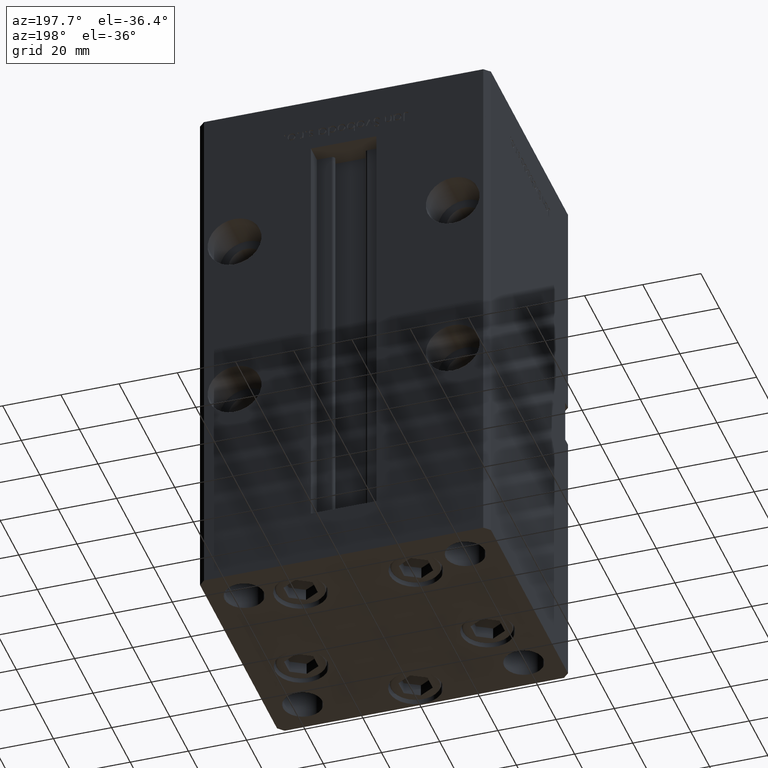
[diagram: clean part render]
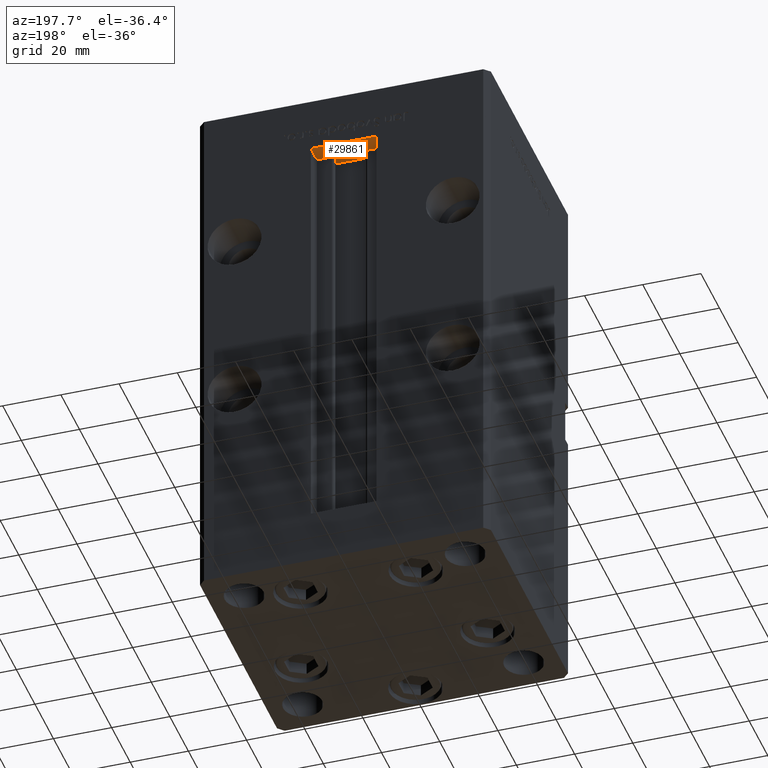
[diagram: same view with one face highlighted and labeled with its STEP entity id]
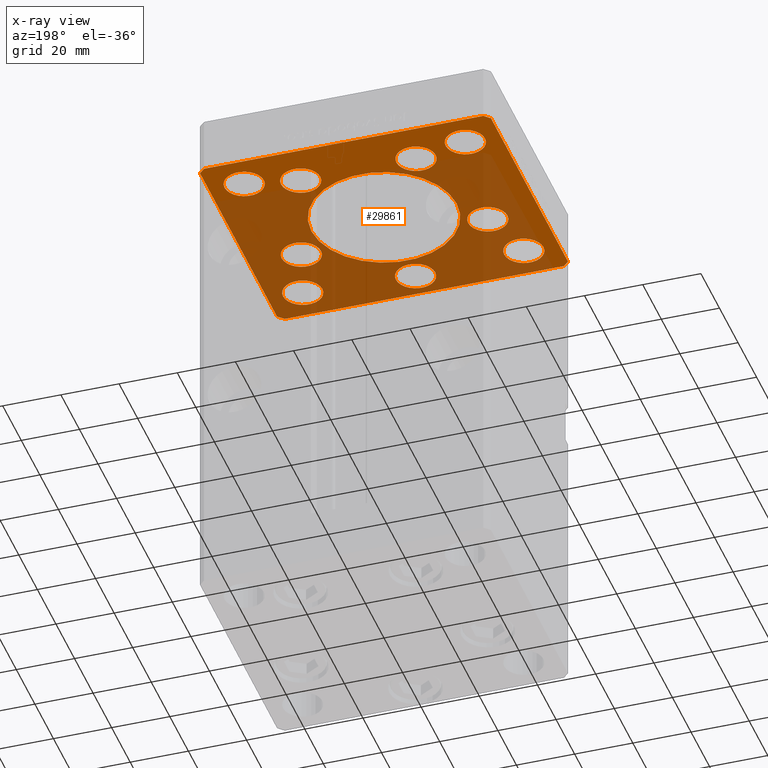
[diagram: x-ray of the same camera — body ghosted, the highlighted face saturated]
A machine part, auxiliary view. The second image highlights one B-rep face of the part: STEP entity #29861.
The next image is the same camera in x-ray: the body ghosted, the highlighted face saturated — about 67% of this face is hidden behind the body in this view.
In plain terms, the highlighted planar face has unit normal (0, 0, 1).
Its self-contained STEP definition (entity closure, byte-faithful):
#101 = DIRECTION ( 'NONE',  ( -0.7071067811865536790, -0.7071067811865414665, 0.000000000000000000 ) ) ;
#145 = CARTESIAN_POINT ( 'NONE',  ( 48.00000000000000711, -43.49999999999992184, -19.00000000000000000 ) ) ;
#228 = CIRCLE ( 'NONE', #15652, 6.749999999999999112 ) ;
#338 = VERTEX_POINT ( 'NONE', #45636 ) ;
#624 = EDGE_CURVE ( 'NONE', #7672, #24189, #51435, .T. ) ;
#974 = CARTESIAN_POINT ( 'NONE',  ( -25.30550741379015989, -11.33333333333332860, -19.00000000000000000 ) ) ;
#1339 = DIRECTION ( 'NONE',  ( 1.000000000000000000, 0.000000000000000000, 0.000000000000000000 ) ) ;
#1450 = CARTESIAN_POINT ( 'NONE',  ( 31.25000000000000000, 31.50000000000000000, -19.00000000000000000 ) ) ;
#1654 = CARTESIAN_POINT ( 'NONE',  ( -38.00000000000000000, 31.50000000000000000, -19.00000000000000000 ) ) ;
#1983 = EDGE_CURVE ( 'NONE', #9144, #33465, #4309, .T. ) ;
#2360 = CARTESIAN_POINT ( 'NONE',  ( -48.00000000000000711, -43.50000000000002842, -19.00000000000000000 ) ) ;
#2396 = EDGE_CURVE ( 'NONE', #21862, #28720, #30601, .T. ) ;
#2771 = EDGE_CURVE ( 'NONE', #50857, #338, #22243, .T. ) ;
#3128 = ORIENTED_EDGE ( 'NONE', *, *, #24017, .F. ) ;
#3172 = AXIS2_PLACEMENT_3D ( 'NONE', #36399, #52786, #12492 ) ;
#4288 = EDGE_LOOP ( 'NONE', ( #26706, #17705 ) ) ;
#4309 = CIRCLE ( 'NONE', #39494, 6.749999999999999112 ) ;
#4528 = ORIENTED_EDGE ( 'NONE', *, *, #41077, .F. ) ;
#4714 = DIRECTION ( 'NONE',  ( 0.7071067811865474617, 0.7071067811865474617, 0.000000000000000000 ) ) ;
#4940 = CIRCLE ( 'NONE', #22944, 6.749999999999999112 ) ;
#5361 = CARTESIAN_POINT ( 'NONE',  ( -38.00000000000000711, -31.50000000000000711, -19.00000000000000000 ) ) ;
#5873 = VERTEX_POINT ( 'NONE', #974 ) ;
#5951 = DIRECTION ( 'NONE',  ( 0.000000000000000000, -0.000000000000000000, -1.000000000000000000 ) ) ;
#6007 = VECTOR ( 'NONE', #29717, 1000.000000000000000 ) ;
#6013 = DIRECTION ( 'NONE',  ( 0.000000000000000000, 0.000000000000000000, 1.000000000000000000 ) ) ;
#6438 = FACE_BOUND ( 'NONE', #8416, .T. ) ;
#6690 = EDGE_CURVE ( 'NONE', #13462, #12822, #46217, .T. ) ;
#6813 = AXIS2_PLACEMENT_3D ( 'NONE', #13841, #6013, #34534 ) ;
#7147 = VERTEX_POINT ( 'NONE', #13233 ) ;
#7190 = ORIENTED_EDGE ( 'NONE', *, *, #39183, .F. ) ;
#7225 = DIRECTION ( 'NONE',  ( 0.000000000000000000, -0.000000000000000000, -1.000000000000000000 ) ) ;
#7508 = DIRECTION ( 'NONE',  ( -1.000000000000000000, 0.000000000000000000, 0.000000000000000000 ) ) ;
#7672 = VERTEX_POINT ( 'NONE', #1450 ) ;
#7795 = ORIENTED_EDGE ( 'NONE', *, *, #10918, .F. ) ;
#8041 = EDGE_CURVE ( 'NONE', #11805, #34625, #17784, .T. ) ;
#8047 = LINE ( 'NONE', #16937, #47334 ) ;
#8416 = EDGE_LOOP ( 'NONE', ( #7190, #31066 ) ) ;
#8821 = AXIS2_PLACEMENT_3D ( 'NONE', #49789, #29391, #8949 ) ;
#8949 = DIRECTION ( 'NONE',  ( 1.000000000000000000, 0.000000000000000000, 0.000000000000000000 ) ) ;
#9144 = VERTEX_POINT ( 'NONE', #22831 ) ;
#9251 = CIRCLE ( 'NONE', #41011, 6.749999999999999112 ) ;
#9373 = CIRCLE ( 'NONE', #16198, 6.749999999999999112 ) ;
#9524 = EDGE_CURVE ( 'NONE', #12822, #13462, #4940, .T. ) ;
#9654 = LINE ( 'NONE', #42446, #42882 ) ;
#9746 = DIRECTION ( 'NONE',  ( 1.000000000000000000, 0.000000000000000000, 0.000000000000000000 ) ) ;
#10282 = ORIENTED_EDGE ( 'NONE', *, *, #17042, .F. ) ;
#10487 = FACE_BOUND ( 'NONE', #50347, .T. ) ;
#10806 = CARTESIAN_POINT ( 'NONE',  ( -44.75000000000000711, -31.50000000000000711, -19.00000000000000000 ) ) ;
#10857 = CARTESIAN_POINT ( 'NONE',  ( -50.00000000000000000, -41.50000000000004263, -19.00000000000000000 ) ) ;
#10918 = EDGE_CURVE ( 'NONE', #33465, #9144, #9251, .T. ) ;
#11221 = ORIENTED_EDGE ( 'NONE', *, *, #49552, .F. ) ;
#11555 = CARTESIAN_POINT ( 'NONE',  ( 32.05550741379015989, -11.33333333333332860, -19.00000000000000000 ) ) ;
#11805 = VERTEX_POINT ( 'NONE', #20316 ) ;
#12111 = EDGE_CURVE ( 'NONE', #14300, #23778, #32500, .T. ) ;
#12473 = ORIENTED_EDGE ( 'NONE', *, *, #13516, .T. ) ;
#12492 = DIRECTION ( 'NONE',  ( -1.000000000000000000, 0.000000000000000000, 0.000000000000000000 ) ) ;
#12548 = DIRECTION ( 'NONE',  ( 0.000000000000000000, -0.000000000000000000, -1.000000000000000000 ) ) ;
#12822 = VERTEX_POINT ( 'NONE', #14910 ) ;
#13233 = CARTESIAN_POINT ( 'NONE',  ( -25.00000000000000000, 3.061616997868383043E-15, -19.00000000000000000 ) ) ;
#13268 = VERTEX_POINT ( 'NONE', #10806 ) ;
#13462 = VERTEX_POINT ( 'NONE', #15777 ) ;
#13493 = CIRCLE ( 'NONE', #3172, 6.749999999999999112 ) ;
#13516 = EDGE_CURVE ( 'NONE', #44447, #13268, #9373, .T. ) ;
#13576 = EDGE_CURVE ( 'NONE', #39048, #7147, #23062, .T. ) ;
#13750 = DIRECTION ( 'NONE',  ( 1.000000000000000000, 0.000000000000000000, 0.000000000000000000 ) ) ;
#13841 = CARTESIAN_POINT ( 'NONE',  ( 38.00000000000000000, 31.50000000000000000, -19.00000000000000000 ) ) ;
#14008 = DIRECTION ( 'NONE',  ( 0.000000000000000000, -0.000000000000000000, -1.000000000000000000 ) ) ;
#14077 = EDGE_CURVE ( 'NONE', #51070, #21862, #20529, .T. ) ;
#14300 = VERTEX_POINT ( 'NONE', #45741 ) ;
#14563 = CARTESIAN_POINT ( 'NONE',  ( -19.82068048781374969, 27.62499999999998934, -19.00000000000000000 ) ) ;
#14701 = ORIENTED_EDGE ( 'NONE', *, *, #14077, .F. ) ;
#14722 = VECTOR ( 'NONE', #20609, 1000.000000000000000 ) ;
#14785 = FACE_BOUND ( 'NONE', #22375, .T. ) ;
#14910 = CARTESIAN_POINT ( 'NONE',  ( 26.57068048781374969, 27.62499999999998934, -19.00000000000000000 ) ) ;
#15125 = CARTESIAN_POINT ( 'NONE',  ( 44.75000000000000000, 31.50000000000000000, -19.00000000000000000 ) ) ;
#15282 = AXIS2_PLACEMENT_3D ( 'NONE', #37820, #17401, #33794 ) ;
#15507 = CARTESIAN_POINT ( 'NONE',  ( -38.00000000000000711, -31.50000000000000711, -19.00000000000000000 ) ) ;
#15652 = AXIS2_PLACEMENT_3D ( 'NONE', #30887, #51042, #26336 ) ;
#15777 = CARTESIAN_POINT ( 'NONE',  ( 13.07068048781375147, 27.62499999999998934, -19.00000000000000000 ) ) ;
#15829 = ORIENTED_EDGE ( 'NONE', *, *, #50592, .T. ) ;
#15846 = CARTESIAN_POINT ( 'NONE',  ( -19.82068048781374969, 27.62499999999998934, -19.00000000000000000 ) ) ;
#15850 = ORIENTED_EDGE ( 'NONE', *, *, #6690, .F. ) ;
#16136 = DIRECTION ( 'NONE',  ( -0.000000000000000000, -0.000000000000000000, -1.000000000000000000 ) ) ;
#16198 = AXIS2_PLACEMENT_3D ( 'NONE', #15507, #27870, #36450 ) ;
#16509 = LINE ( 'NONE', #52226, #19254 ) ;
#16937 = CARTESIAN_POINT ( 'NONE',  ( 50.00000000000000000, 41.50000000000000711, -19.00000000000000000 ) ) ;
#16946 = CARTESIAN_POINT ( 'NONE',  ( -38.00000000000000000, 31.50000000000000000, -19.00000000000000000 ) ) ;
#17042 = EDGE_CURVE ( 'NONE', #32568, #48662, #20840, .T. ) ;
#17045 = AXIS2_PLACEMENT_3D ( 'NONE', #14563, #5951, #9746 ) ;
#17091 = DIRECTION ( 'NONE',  ( 1.000000000000000000, 0.000000000000000000, 0.000000000000000000 ) ) ;
#17401 = DIRECTION ( 'NONE',  ( 0.000000000000000000, -0.000000000000000000, -1.000000000000000000 ) ) ;
#17705 = ORIENTED_EDGE ( 'NONE', *, *, #36747, .F. ) ;
#17746 = CARTESIAN_POINT ( 'NONE',  ( -31.25000000000000711, -31.50000000000000711, -19.00000000000000000 ) ) ;
#17784 = CIRCLE ( 'NONE', #41067, 6.749999999999999112 ) ;
#17885 = CARTESIAN_POINT ( 'NONE',  ( 50.00000000000000000, -41.49999999999992895, -19.00000000000000000 ) ) ;
#18214 = CARTESIAN_POINT ( 'NONE',  ( 19.82068048781374969, 27.62499999999998934, -19.00000000000000000 ) ) ;
#18309 = DIRECTION ( 'NONE',  ( -0.000000000000000000, 0.000000000000000000, 1.000000000000000000 ) ) ;
#18794 = EDGE_CURVE ( 'NONE', #45402, #5873, #30174, .T. ) ;
#19254 = VECTOR ( 'NONE', #52767, 1000.000000000000000 ) ;
#19658 = ORIENTED_EDGE ( 'NONE', *, *, #38277, .F. ) ;
#19710 = EDGE_CURVE ( 'NONE', #43713, #36900, #49869, .T. ) ;
#19887 = DIRECTION ( 'NONE',  ( -0.7071067811865512365, 0.7071067811865439090, 0.000000000000000000 ) ) ;
#20316 = CARTESIAN_POINT ( 'NONE',  ( -31.25000000000000000, 31.50000000000000000, -19.00000000000000000 ) ) ;
#20529 = LINE ( 'NONE', #25638, #41993 ) ;
#20609 = DIRECTION ( 'NONE',  ( 0.7071067811865487940, -0.7071067811865463515, 0.000000000000000000 ) ) ;
#20840 = LINE ( 'NONE', #38037, #6007 ) ;
#21692 = CARTESIAN_POINT ( 'NONE',  ( -32.05550741379015989, -11.33333333333332860, -19.00000000000000000 ) ) ;
#21862 = VERTEX_POINT ( 'NONE', #38998 ) ;
#21863 = EDGE_LOOP ( 'NONE', ( #7795, #52132 ) ) ;
#22062 = FACE_BOUND ( 'NONE', #40610, .T. ) ;
#22243 = CIRCLE ( 'NONE', #42007, 6.749999999999999112 ) ;
#22333 = CARTESIAN_POINT ( 'NONE',  ( 0.000000000000000000, -34.00000000000000000, -19.00000000000000000 ) ) ;
#22375 = EDGE_LOOP ( 'NONE', ( #43659, #11221 ) ) ;
#22597 = FACE_BOUND ( 'NONE', #26433, .T. ) ;
#22831 = CARTESIAN_POINT ( 'NONE',  ( -6.749999999999999112, -34.00000000000000000, -19.00000000000000000 ) ) ;
#22944 = AXIS2_PLACEMENT_3D ( 'NONE', #18214, #47483, #50451 ) ;
#23045 = EDGE_CURVE ( 'NONE', #34625, #11805, #23409, .T. ) ;
#23062 = CIRCLE ( 'NONE', #29102, 25.00000000000000000 ) ;
#23114 = PLANE ( 'NONE',  #28619 ) ;
#23155 = EDGE_CURVE ( 'NONE', #24189, #7672, #228, .T. ) ;
#23409 = CIRCLE ( 'NONE', #36243, 6.749999999999999112 ) ;
#23778 = VERTEX_POINT ( 'NONE', #47671 ) ;
#24017 = EDGE_CURVE ( 'NONE', #28720, #43737, #52844, .T. ) ;
#24189 = VERTEX_POINT ( 'NONE', #15125 ) ;
#24271 = CARTESIAN_POINT ( 'NONE',  ( 47.99999999999999289, 43.50000000000000000, -19.00000000000000000 ) ) ;
#25638 = CARTESIAN_POINT ( 'NONE',  ( -48.00000000000000000, 43.49999999999997158, -19.00000000000000000 ) ) ;
#26318 = CARTESIAN_POINT ( 'NONE',  ( 25.00000000000000000, 0.000000000000000000, -19.00000000000000000 ) ) ;
#26336 = DIRECTION ( 'NONE',  ( 1.000000000000000000, 0.000000000000000000, 0.000000000000000000 ) ) ;
#26433 = EDGE_LOOP ( 'NONE', ( #45512, #30726 ) ) ;
#26543 = ORIENTED_EDGE ( 'NONE', *, *, #51519, .F. ) ;
#26562 = DIRECTION ( 'NONE',  ( 1.000000000000000000, 1.156482317317871331E-15, 0.000000000000000000 ) ) ;
#26706 = ORIENTED_EDGE ( 'NONE', *, *, #19710, .F. ) ;
#26708 = AXIS2_PLACEMENT_3D ( 'NONE', #27966, #44340, #7508 ) ;
#26801 = AXIS2_PLACEMENT_3D ( 'NONE', #5361, #38167, #1339 ) ;
#26889 = FACE_BOUND ( 'NONE', #35753, .T. ) ;
#27263 = ORIENTED_EDGE ( 'NONE', *, *, #8041, .F. ) ;
#27870 = DIRECTION ( 'NONE',  ( 0.000000000000000000, 0.000000000000000000, 1.000000000000000000 ) ) ;
#27966 = CARTESIAN_POINT ( 'NONE',  ( 38.00000000000000711, -31.50000000000000711, -19.00000000000000000 ) ) ;
#28435 = AXIS2_PLACEMENT_3D ( 'NONE', #50040, #34183, #13750 ) ;
#28619 = AXIS2_PLACEMENT_3D ( 'NONE', #51583, #18309, #43531 ) ;
#28675 = DIRECTION ( 'NONE',  ( 8.360113137237620037E-17, -1.000000000000000000, 0.000000000000000000 ) ) ;
#28720 = VERTEX_POINT ( 'NONE', #10857 ) ;
#29102 = AXIS2_PLACEMENT_3D ( 'NONE', #36180, #53094, #52574 ) ;
#29222 = CARTESIAN_POINT ( 'NONE',  ( -50.00000000000000000, -41.50000000000004263, -19.00000000000000000 ) ) ;
#29391 = DIRECTION ( 'NONE',  ( 0.000000000000000000, -0.000000000000000000, -1.000000000000000000 ) ) ;
#29552 = ORIENTED_EDGE ( 'NONE', *, *, #624, .T. ) ;
#29717 = DIRECTION ( 'NONE',  ( 0.000000000000000000, 1.000000000000000000, 0.000000000000000000 ) ) ;
#29753 = ORIENTED_EDGE ( 'NONE', *, *, #23045, .F. ) ;
#29861 = ADVANCED_FACE ( 'NONE', ( #30666, #6438, #46524, #14785, #10487, #22597, #26889, #31186, #39503, #22062, #38724 ), #23114, .F. ) ;
#29903 = ORIENTED_EDGE ( 'NONE', *, *, #23155, .T. ) ;
#30174 = CIRCLE ( 'NONE', #28435, 6.749999999999999112 ) ;
#30601 = LINE ( 'NONE', #35916, #50541 ) ;
#30666 = FACE_BOUND ( 'NONE', #34095, .T. ) ;
#30715 = ORIENTED_EDGE ( 'NONE', *, *, #9524, .F. ) ;
#30726 = ORIENTED_EDGE ( 'NONE', *, *, #48402, .F. ) ;
#30886 = CIRCLE ( 'NONE', #48892, 6.749999999999999112 ) ;
#30887 = CARTESIAN_POINT ( 'NONE',  ( 38.00000000000000000, 31.50000000000000000, -19.00000000000000000 ) ) ;
#31066 = ORIENTED_EDGE ( 'NONE', *, *, #18794, .F. ) ;
#31186 = FACE_BOUND ( 'NONE', #50598, .T. ) ;
#32064 = CARTESIAN_POINT ( 'NONE',  ( 31.25000000000000711, -31.50000000000000711, -19.00000000000000000 ) ) ;
#32103 = EDGE_CURVE ( 'NONE', #47480, #51070, #16509, .T. ) ;
#32499 = ORIENTED_EDGE ( 'NONE', *, *, #13576, .F. ) ;
#32500 = CIRCLE ( 'NONE', #17045, 6.749999999999999112 ) ;
#32568 = VERTEX_POINT ( 'NONE', #17885 ) ;
#32637 = VECTOR ( 'NONE', #4714, 1000.000000000000114 ) ;
#33465 = VERTEX_POINT ( 'NONE', #37789 ) ;
#33560 = ORIENTED_EDGE ( 'NONE', *, *, #32103, .F. ) ;
#33794 = DIRECTION ( 'NONE',  ( 1.000000000000000000, 0.000000000000000000, 0.000000000000000000 ) ) ;
#33978 = CARTESIAN_POINT ( 'NONE',  ( -44.75000000000000000, 31.50000000000000000, -19.00000000000000000 ) ) ;
#34095 = EDGE_LOOP ( 'NONE', ( #32499, #26543 ) ) ;
#34183 = DIRECTION ( 'NONE',  ( 0.000000000000000000, -0.000000000000000000, -1.000000000000000000 ) ) ;
#34479 = VERTEX_POINT ( 'NONE', #40960 ) ;
#34524 = CARTESIAN_POINT ( 'NONE',  ( -48.00000000000000000, 43.49999999999997158, -19.00000000000000000 ) ) ;
#34534 = DIRECTION ( 'NONE',  ( 1.000000000000000000, 0.000000000000000000, 0.000000000000000000 ) ) ;
#34625 = VERTEX_POINT ( 'NONE', #33978 ) ;
#35753 = EDGE_LOOP ( 'NONE', ( #29903, #29552 ) ) ;
#35916 = CARTESIAN_POINT ( 'NONE',  ( -50.00000000000000711, 41.49999999999999289, -19.00000000000000000 ) ) ;
#35991 = DIRECTION ( 'NONE',  ( 0.000000000000000000, -0.000000000000000000, -1.000000000000000000 ) ) ;
#36180 = CARTESIAN_POINT ( 'NONE',  ( 0.000000000000000000, 0.000000000000000000, -19.00000000000000000 ) ) ;
#36243 = AXIS2_PLACEMENT_3D ( 'NONE', #16946, #16136, #37634 ) ;
#36399 = CARTESIAN_POINT ( 'NONE',  ( 38.00000000000000711, -31.50000000000000711, -19.00000000000000000 ) ) ;
#36450 = DIRECTION ( 'NONE',  ( 1.000000000000000000, 0.000000000000000000, 0.000000000000000000 ) ) ;
#36747 = EDGE_CURVE ( 'NONE', #36900, #43713, #13493, .T. ) ;
#36900 = VERTEX_POINT ( 'NONE', #32064 ) ;
#37634 = DIRECTION ( 'NONE',  ( -1.000000000000000000, 0.000000000000000000, 0.000000000000000000 ) ) ;
#37663 = DIRECTION ( 'NONE',  ( 1.000000000000000000, 0.000000000000000000, 0.000000000000000000 ) ) ;
#37789 = CARTESIAN_POINT ( 'NONE',  ( 6.749999999999999112, -34.00000000000000000, -19.00000000000000000 ) ) ;
#37820 = CARTESIAN_POINT ( 'NONE',  ( 19.82068048781374969, 27.62499999999998934, -19.00000000000000000 ) ) ;
#37855 = ORIENTED_EDGE ( 'NONE', *, *, #43537, .F. ) ;
#37916 = CIRCLE ( 'NONE', #40444, 6.749999999999999112 ) ;
#38037 = CARTESIAN_POINT ( 'NONE',  ( 50.00000000000000000, -41.49999999999992895, -19.00000000000000000 ) ) ;
#38085 = DIRECTION ( 'NONE',  ( 0.000000000000000000, -0.000000000000000000, -1.000000000000000000 ) ) ;
#38167 = DIRECTION ( 'NONE',  ( 0.000000000000000000, 0.000000000000000000, 1.000000000000000000 ) ) ;
#38277 = EDGE_CURVE ( 'NONE', #43737, #34479, #9654, .T. ) ;
#38724 = FACE_BOUND ( 'NONE', #4288, .T. ) ;
#38998 = CARTESIAN_POINT ( 'NONE',  ( -50.00000000000000711, 41.49999999999999289, -19.00000000000000000 ) ) ;
#39048 = VERTEX_POINT ( 'NONE', #26318 ) ;
#39183 = EDGE_CURVE ( 'NONE', #5873, #45402, #30886, .T. ) ;
#39243 = DIRECTION ( 'NONE',  ( 1.000000000000000000, 0.000000000000000000, 0.000000000000000000 ) ) ;
#39494 = AXIS2_PLACEMENT_3D ( 'NONE', #22333, #14008, #37663 ) ;
#39503 = FACE_OUTER_BOUND ( 'NONE', #39851, .T. ) ;
#39851 = EDGE_LOOP ( 'NONE', ( #3128, #45792, #14701, #33560, #37855, #10282, #4528, #19658 ) ) ;
#40406 = CIRCLE ( 'NONE', #45601, 6.749999999999999112 ) ;
#40444 = AXIS2_PLACEMENT_3D ( 'NONE', #49361, #12548, #45328 ) ;
#40610 = EDGE_LOOP ( 'NONE', ( #27263, #29753 ) ) ;
#40960 = CARTESIAN_POINT ( 'NONE',  ( 48.00000000000000711, -43.49999999999992184, -19.00000000000000000 ) ) ;
#41011 = AXIS2_PLACEMENT_3D ( 'NONE', #45040, #41559, #17091 ) ;
#41067 = AXIS2_PLACEMENT_3D ( 'NONE', #1654, #51097, #43304 ) ;
#41077 = EDGE_CURVE ( 'NONE', #34479, #32568, #41553, .T. ) ;
#41395 = CIRCLE ( 'NONE', #26801, 6.749999999999999112 ) ;
#41553 = LINE ( 'NONE', #145, #32637 ) ;
#41559 = DIRECTION ( 'NONE',  ( 0.000000000000000000, -0.000000000000000000, -1.000000000000000000 ) ) ;
#41993 = VECTOR ( 'NONE', #101, 1000.000000000000000 ) ;
#42007 = AXIS2_PLACEMENT_3D ( 'NONE', #11555, #35991, #39243 ) ;
#42132 = CARTESIAN_POINT ( 'NONE',  ( 38.80550741379015989, -11.33333333333332860, -19.00000000000000000 ) ) ;
#42446 = CARTESIAN_POINT ( 'NONE',  ( -48.00000000000000711, -43.50000000000002842, -19.00000000000000000 ) ) ;
#42882 = VECTOR ( 'NONE', #26562, 1000.000000000000000 ) ;
#43304 = DIRECTION ( 'NONE',  ( -1.000000000000000000, 0.000000000000000000, 0.000000000000000000 ) ) ;
#43531 = DIRECTION ( 'NONE',  ( 1.000000000000000000, 0.000000000000000000, 0.000000000000000000 ) ) ;
#43537 = EDGE_CURVE ( 'NONE', #48662, #47480, #8047, .T. ) ;
#43659 = ORIENTED_EDGE ( 'NONE', *, *, #2771, .F. ) ;
#43713 = VERTEX_POINT ( 'NONE', #51538 ) ;
#43737 = VERTEX_POINT ( 'NONE', #2360 ) ;
#44340 = DIRECTION ( 'NONE',  ( -0.000000000000000000, -0.000000000000000000, -1.000000000000000000 ) ) ;
#44447 = VERTEX_POINT ( 'NONE', #17746 ) ;
#45040 = CARTESIAN_POINT ( 'NONE',  ( 0.000000000000000000, -34.00000000000000000, -19.00000000000000000 ) ) ;
#45078 = DIRECTION ( 'NONE',  ( 1.000000000000000000, 0.000000000000000000, 0.000000000000000000 ) ) ;
#45328 = DIRECTION ( 'NONE',  ( 1.000000000000000000, 0.000000000000000000, 0.000000000000000000 ) ) ;
#45402 = VERTEX_POINT ( 'NONE', #50682 ) ;
#45512 = ORIENTED_EDGE ( 'NONE', *, *, #12111, .F. ) ;
#45601 = AXIS2_PLACEMENT_3D ( 'NONE', #15846, #7225, #48610 ) ;
#45636 = CARTESIAN_POINT ( 'NONE',  ( 25.30550741379015989, -11.33333333333332860, -19.00000000000000000 ) ) ;
#45741 = CARTESIAN_POINT ( 'NONE',  ( -13.07068048781375325, 27.62499999999998934, -19.00000000000000000 ) ) ;
#45792 = ORIENTED_EDGE ( 'NONE', *, *, #2396, .F. ) ;
#46217 = CIRCLE ( 'NONE', #15282, 6.749999999999999112 ) ;
#46524 = FACE_BOUND ( 'NONE', #21863, .T. ) ;
#47334 = VECTOR ( 'NONE', #19887, 999.9999999999998863 ) ;
#47480 = VERTEX_POINT ( 'NONE', #24271 ) ;
#47483 = DIRECTION ( 'NONE',  ( 0.000000000000000000, -0.000000000000000000, -1.000000000000000000 ) ) ;
#47502 = CARTESIAN_POINT ( 'NONE',  ( 50.00000000000000000, 41.50000000000000711, -19.00000000000000000 ) ) ;
#47671 = CARTESIAN_POINT ( 'NONE',  ( -26.57068048781375325, 27.62499999999998934, -19.00000000000000000 ) ) ;
#48273 = CIRCLE ( 'NONE', #8821, 25.00000000000000000 ) ;
#48402 = EDGE_CURVE ( 'NONE', #23778, #14300, #40406, .T. ) ;
#48610 = DIRECTION ( 'NONE',  ( 1.000000000000000000, 0.000000000000000000, 0.000000000000000000 ) ) ;
#48662 = VERTEX_POINT ( 'NONE', #47502 ) ;
#48892 = AXIS2_PLACEMENT_3D ( 'NONE', #21692, #38085, #45078 ) ;
#49361 = CARTESIAN_POINT ( 'NONE',  ( 32.05550741379015989, -11.33333333333332860, -19.00000000000000000 ) ) ;
#49552 = EDGE_CURVE ( 'NONE', #338, #50857, #37916, .T. ) ;
#49789 = CARTESIAN_POINT ( 'NONE',  ( 0.000000000000000000, 0.000000000000000000, -19.00000000000000000 ) ) ;
#49869 = CIRCLE ( 'NONE', #26708, 6.749999999999999112 ) ;
#50040 = CARTESIAN_POINT ( 'NONE',  ( -32.05550741379015989, -11.33333333333332860, -19.00000000000000000 ) ) ;
#50347 = EDGE_LOOP ( 'NONE', ( #30715, #15850 ) ) ;
#50451 = DIRECTION ( 'NONE',  ( 1.000000000000000000, 0.000000000000000000, 0.000000000000000000 ) ) ;
#50541 = VECTOR ( 'NONE', #28675, 1000.000000000000000 ) ;
#50592 = EDGE_CURVE ( 'NONE', #13268, #44447, #41395, .T. ) ;
#50598 = EDGE_LOOP ( 'NONE', ( #12473, #15829 ) ) ;
#50682 = CARTESIAN_POINT ( 'NONE',  ( -38.80550741379015989, -11.33333333333332860, -19.00000000000000000 ) ) ;
#50857 = VERTEX_POINT ( 'NONE', #42132 ) ;
#51042 = DIRECTION ( 'NONE',  ( 0.000000000000000000, 0.000000000000000000, 1.000000000000000000 ) ) ;
#51070 = VERTEX_POINT ( 'NONE', #34524 ) ;
#51097 = DIRECTION ( 'NONE',  ( -0.000000000000000000, -0.000000000000000000, -1.000000000000000000 ) ) ;
#51435 = CIRCLE ( 'NONE', #6813, 6.749999999999999112 ) ;
#51519 = EDGE_CURVE ( 'NONE', #7147, #39048, #48273, .T. ) ;
#51538 = CARTESIAN_POINT ( 'NONE',  ( 44.75000000000000711, -31.50000000000000711, -19.00000000000000000 ) ) ;
#51583 = CARTESIAN_POINT ( 'NONE',  ( 0.000000000000000000, 0.000000000000000000, -19.00000000000000000 ) ) ;
#52132 = ORIENTED_EDGE ( 'NONE', *, *, #1983, .F. ) ;
#52226 = CARTESIAN_POINT ( 'NONE',  ( 47.99999999999999289, 43.50000000000000000, -19.00000000000000000 ) ) ;
#52574 = DIRECTION ( 'NONE',  ( 1.000000000000000000, 0.000000000000000000, 0.000000000000000000 ) ) ;
#52767 = DIRECTION ( 'NONE',  ( -1.000000000000000000, -2.891205793294678326E-16, 0.000000000000000000 ) ) ;
#52786 = DIRECTION ( 'NONE',  ( -0.000000000000000000, -0.000000000000000000, -1.000000000000000000 ) ) ;
#52844 = LINE ( 'NONE', #29222, #14722 ) ;
#53094 = DIRECTION ( 'NONE',  ( 0.000000000000000000, -0.000000000000000000, -1.000000000000000000 ) ) ;